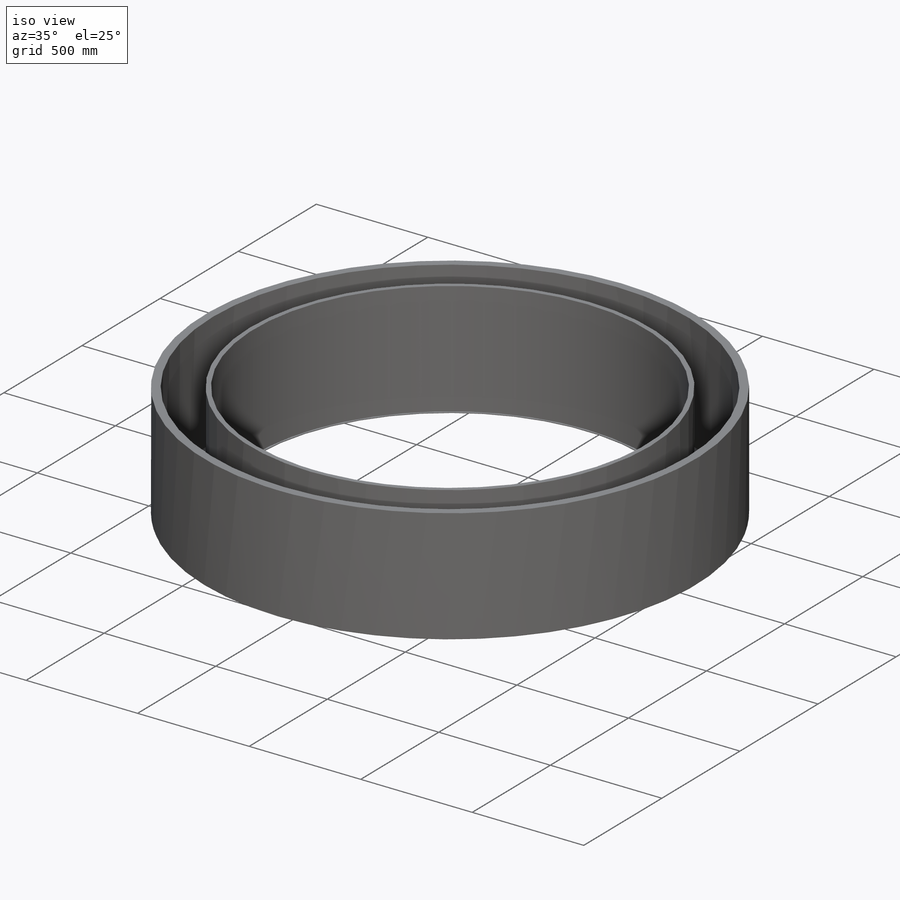
[diagram: iso view]
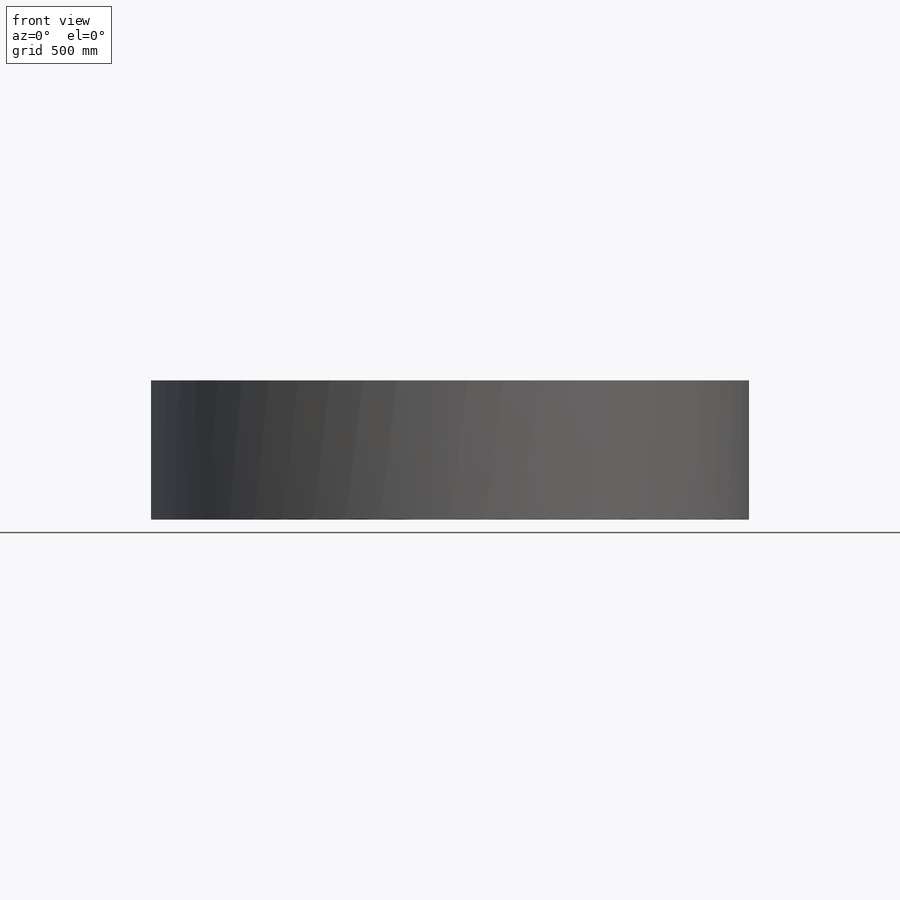
[diagram: front view]
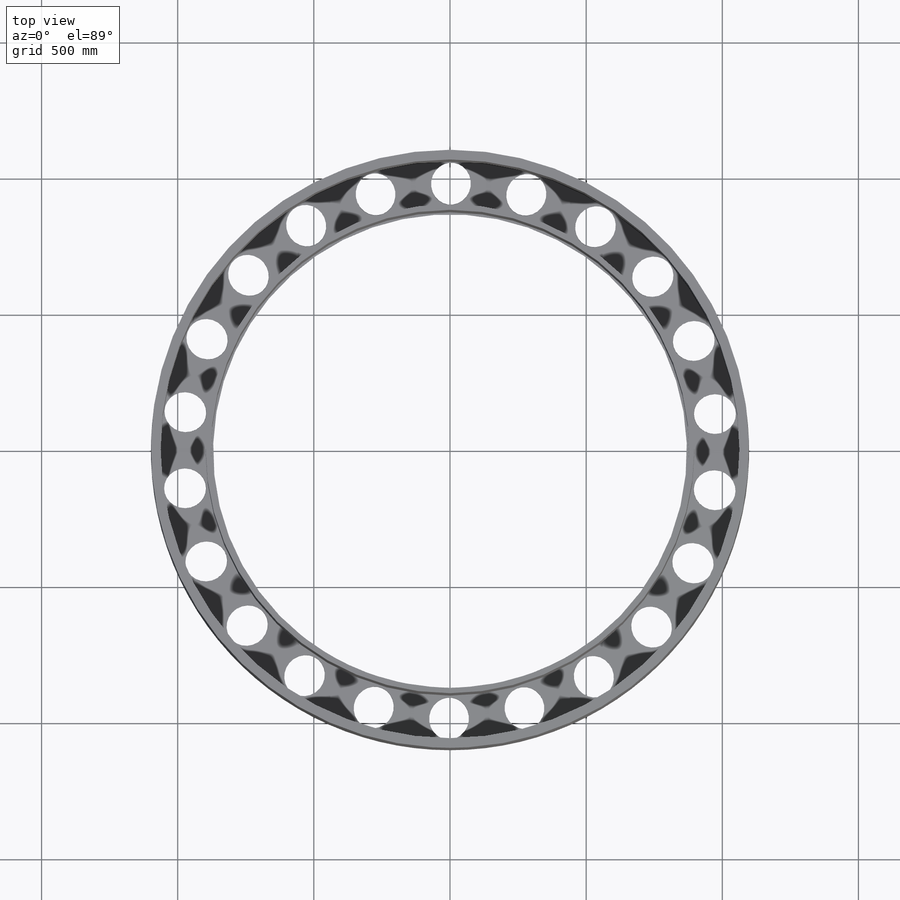
[diagram: top view]
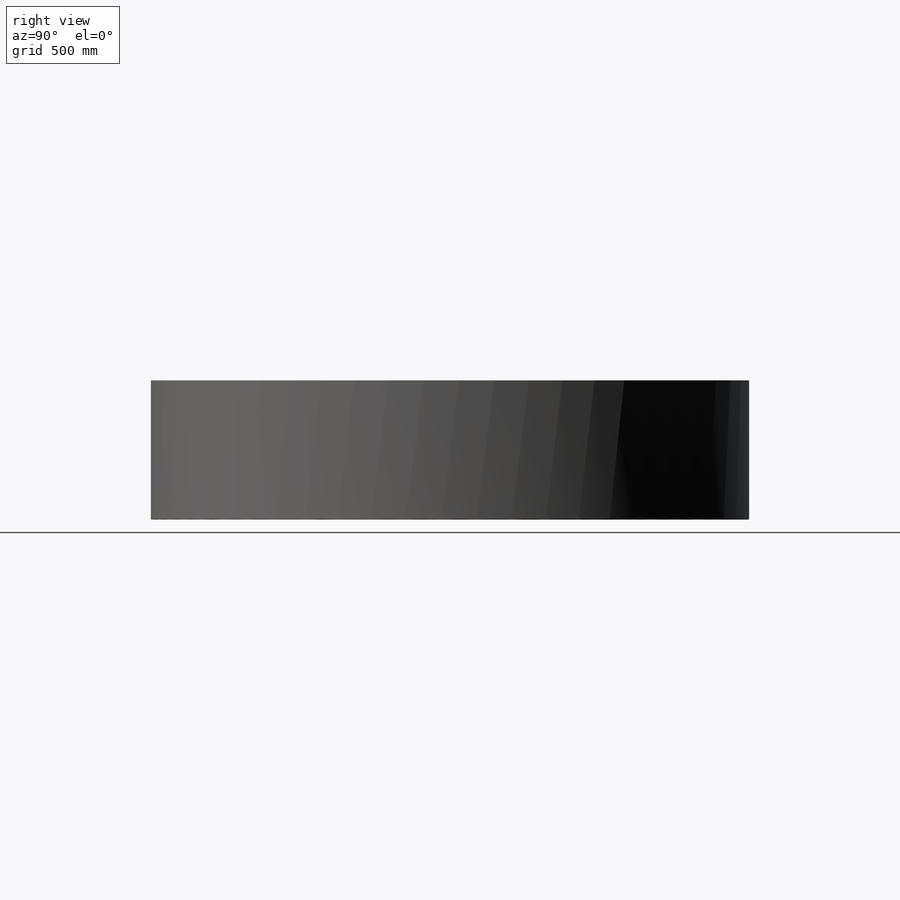
[diagram: right view]
SOLIDWORKS PART (.sldprt)
format: sldprt  version: not decoded by parser v0  size: 353,792 bytes
history: native  units: mm
features: sketch x10, extrude x3, cut_extrude x3, material x1, pattern_circular x1, shell x1 (+14 scaffold rows collapsed)
feature tree (33):
  scaffold x14  (default folders/planes/origin — collapsed)
  material  "6061 Alloy"
  sketch  "Sketch1"  dims[c1.D1=2565.4mm c1.D2=2565.4mm c1.D3=1282.7mm c1.D4=1282.7mm c1.D5=609.6mm c1.D6=609.6mm c2.D1=609.6mm c2.D2=609.6mm c2.D7=609.6mm c2.D8=609.6mm c2.D9=609.6mm c2.D10=609.6mm c2.D11=2565.4mm c2.D12=2565.4mm]
  extrude  "Extrude1"  Depth=3.175mm
  sketch  "3DSketch1"  dims[c1.D1=~539.027738mm c2.D1=~53.391415deg c2.D3=70.35deg c2.D2=~545.262897mm c3.D2=~69.439708deg c3.D3=70.35deg c4.D3=~878.928099mm c4.D2=50.0mm]
  sketch  "Sketch4"  dims[c1.D1=~495.52859mm c2.D1=70.35deg c2.D2=~435.156657mm]
  sketch  "3DSketch3"
  sketch  "Sketch5"
  cut_extrude  "Extrude3"  Depth=525mm
  sketch  "Sketch7"
  pattern_circular  "CirPattern2"  Count=22 Angle=360deg
  sketch  "Sketch8"  dims[D1=1795.4mm D2=1406.2mm]
  cut_extrude  "Extrude4"  Depth=10mm
  sketch  "Sketch9"  dims[D1=1406.2mm]
  cut_extrude  "Extrude5"  [1 undecoded]
  sketch  "Sketch10"
  extrude  "Extrude6"  Depth=508mm
  sketch  "Sketch11"
  extrude  "Extrude7"  Depth=508mm
  shell  "Shell2"  Thickness=10mm
decode coverage: 12 of 18 modeling features carry decoded parameters
note: ~ marks probable driven/reference dimensions
note: 1 parameter value undecoded
note: suppression state not decoded; provenance and decode notes live in map.json
